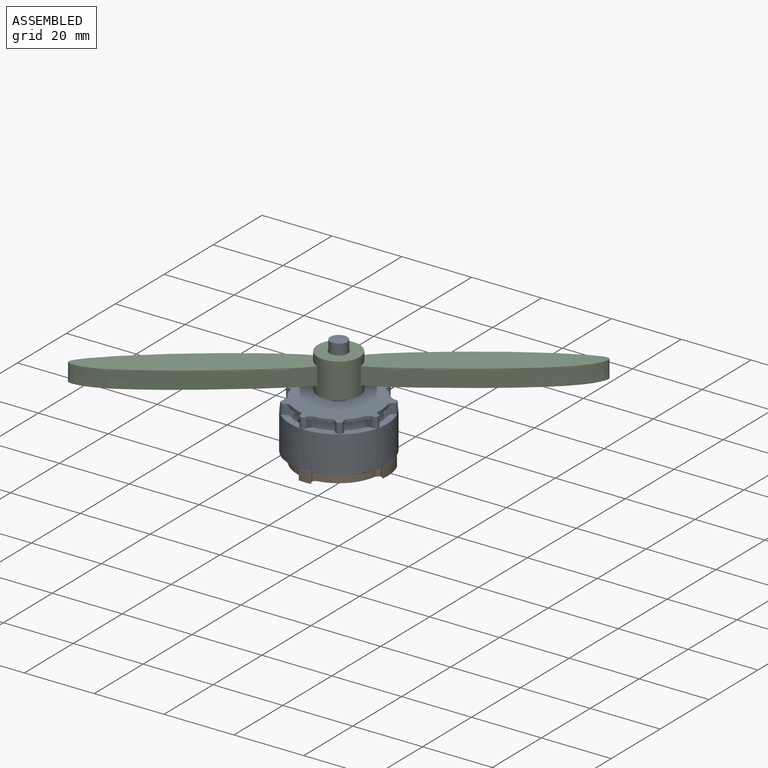
[diagram: assembled view]
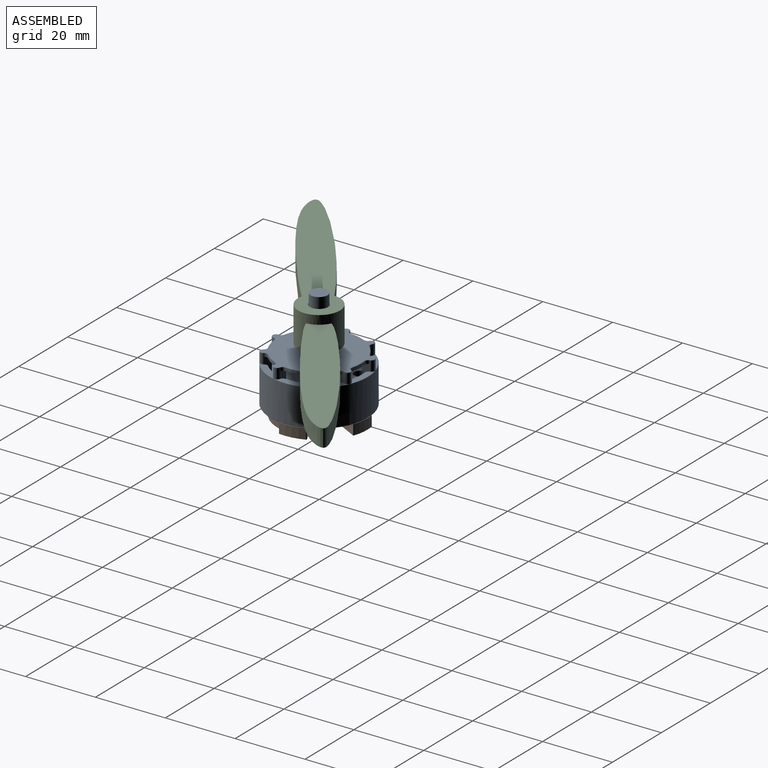
[diagram: assembled view, second angle]
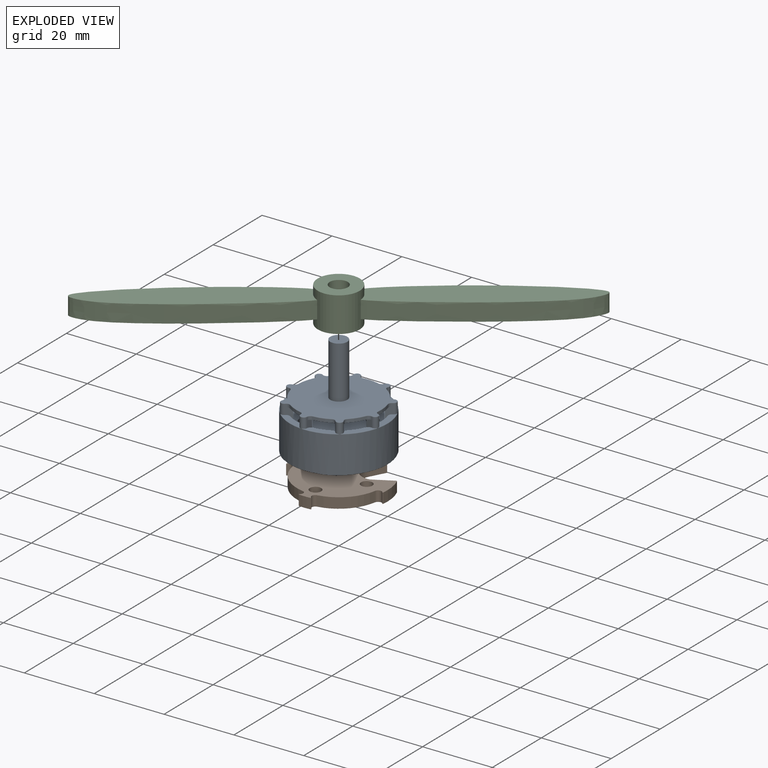
[diagram: exploded view]
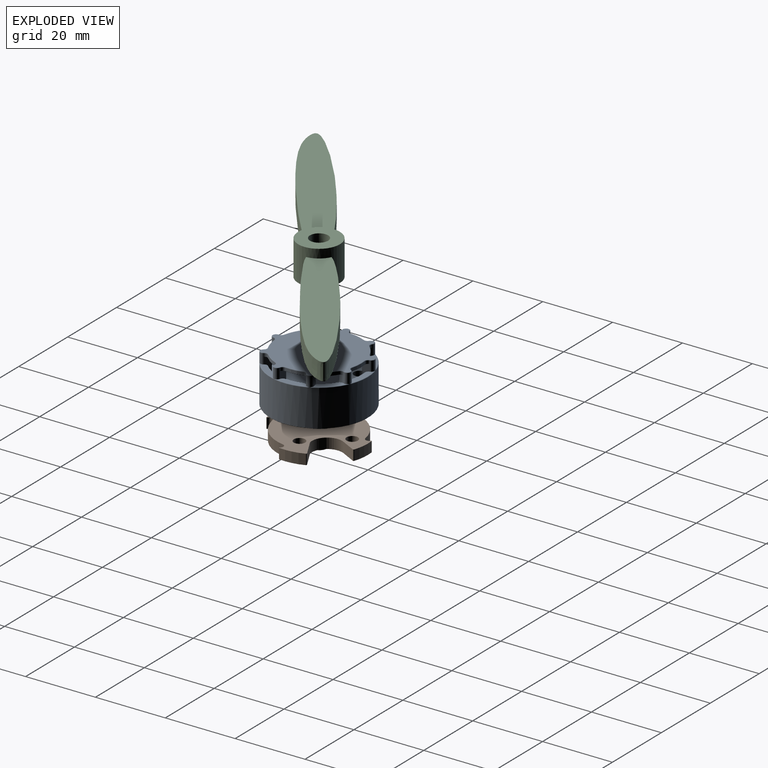
[diagram: exploded view, second angle]
ASSEMBLY  parts=3 mates=3
PART A: 203 faces, bbox 30.3x30.3x28.7 mm
  f0: plane 4.9x4.9mm, normal (0,0,1), area 18.9mm2, adj f1
  f1: cylinder r=2.45mm len=15mm, axis (0,0,-1), area 231mm2, adj f0,f112
  f2: cylinder r=0.12mm len=0.14mm, axis (0,0,1), area 0mm2, adj f76,f79,f194
  f3: cylinder r=0.12mm len=0.14mm, axis (0,0,1), area 0mm2, adj f76,f79,f194
  f4: cylinder r=0.12mm len=0.14mm, axis (0,0,1), area 0mm2, adj f75,f79,f194
  f5: plane 7.4x4.7mm, normal (0,0,1), area 12.3mm2, adj f6,f7,f8,f18,f46,f47,f48,f87
  f6: cylinder r=1mm len=2.88mm, axis (0,0,-1), area 9mm2, adj f5,f7,f15,f19,f86,f91,f156
  f7: plane 5.88x1.89mm, normal (0.17,0.98,0), area 9.5mm2, adj f5,f6,f28,f45,f46,f73,f74,f157
  f8: cylinder r=1mm len=2.88mm, axis (0,0,-1), area 9mm2, adj f5,f9,f18,f81,f85,f89,f162
  f9: plane 5.88x1.47mm, normal (0.77,0.64,0), area 9.5mm2, adj f8,f31,f49,f50,f73,f74,f81,f163
  f10: plane 6.55x5.64mm, normal (0,0,1), area 12.3mm2, adj f66,f67,f68,f111,f114,f115,f119,f120
  f11: plane 8.55x2mm, normal (0,0,1), area 12.3mm2, adj f13,f21,f70,f71,f72,f105,f113,f114
  f12: plane 6.55x5.64mm, normal (0,0,1), area 12.3mm2, adj f13,f14,f16,f20,f38,f39,f40,f99
  f13: cylinder r=1mm len=2.88mm, axis (0,0,-1), area 9mm2, adj f11,f12,f14,f21,f98,f103,f144
  f14: plane 5.88x1.8mm, normal (-0.94,0.34,0), area 9.5mm2, adj f12,f13,f22,f37,f38,f73,f74,f145
  f15: plane 8.42x2.64mm, normal (0,0,1), area 12.3mm2, adj f6,f16,f17,f19,f42,f43,f44,f93
  f16: cylinder r=1mm len=2.88mm, axis (0,0,-1), area 9mm2, adj f12,f15,f17,f20,f92,f97,f150
  f17: plane 5.88x1.66mm, normal (-0.5,0.87,0), area 9.5mm2, adj f15,f16,f25,f41,f42,f73,f74,f151
  f18: plane 5.88x1.47mm, normal (-0.77,-0.64,0), area 9.5mm2, adj f5,f8,f30,f48,f49,f73,f74,f161
  f19: plane 5.88x1.89mm, normal (-0.17,-0.98,0), area 9.5mm2, adj f6,f15,f27,f44,f45,f73,f74,f155
  f20: plane 5.88x1.66mm, normal (0.5,-0.87,0), area 9.5mm2, adj f12,f16,f24,f40,f41,f73,f74,f149
  f21: plane 5.88x1.8mm, normal (0.94,-0.34,0), area 9.5mm2, adj f11,f13,f36,f37,f72,f73,f74,f143
  f22: cylinder r=1mm len=1.22mm, axis (0,0,1), area 1.2mm2, adj f14,f23,f74,f146
  f23: cylinder r=12.12mm len=3.62mm, axis (0,0,-1), area 4.2mm2, adj f22,f24,f74,f147
  f24: cylinder r=1mm len=1.28mm, axis (0,0,-1), area 1.2mm2, adj f20,f23,f74,f148
  f25: cylinder r=1mm len=1.23mm, axis (0,0,1), area 1.2mm2, adj f17,f26,f74,f152
  f26: cylinder r=12.12mm len=4.65mm, axis (0,0,-1), area 4.2mm2, adj f25,f27,f74,f153
  f27: cylinder r=1mm len=1.01mm, axis (0,0,-1), area 1.2mm2, adj f19,f26,f74,f154
  f28: cylinder r=1mm len=1.12mm, axis (0,0,1), area 1.2mm2, adj f7,f29,f74,f158
  f29: cylinder r=12.12mm len=4.09mm, axis (0,0,-1), area 4.2mm2, adj f28,f30,f74,f159
  f30: cylinder r=1mm len=1.3mm, axis (0,0,-1), area 1.2mm2, adj f18,f29,f74,f160
  f31: cylinder r=1mm len=1.28mm, axis (0,0,1), area 1.2mm2, adj f9,f32,f74,f164
  f32: cylinder r=12.12mm len=4.44mm, axis (0,0,-1), area 4.2mm2, adj f31,f33,f74,f165
  f33: cylinder r=1mm len=0.99mm, axis (0,0,-1), area 1.2mm2, adj f32,f74,f139,f166
  f34: cylinder r=1mm len=1.13mm, axis (0,0,1), area 1.2mm2, adj f35,f74,f113,f140
  f35: cylinder r=12.12mm len=4.72mm, axis (0,0,-1), area 4.2mm2, adj f34,f36,f74,f141
  f36: cylinder r=1mm len=1.13mm, axis (0,0,-1), area 1.2mm2, adj f21,f35,f74,f142
  f37: cylinder r=11.12mm len=5mm, axis (0,0,-1), area 10mm2, adj f14,f21,f73,f74
  f38: cylinder r=1mm len=3mm, axis (0,0,-1), area 4.3mm2, adj f12,f14,f39,f73
  f39: cylinder r=12.12mm len=3.62mm, axis (0,0,-1), area 14.3mm2, adj f12,f38,f40,f73
  f40: cylinder r=1mm len=3mm, axis (0,0,-1), area 4.3mm2, adj f12,f20,f39,f73
  f41: cylinder r=11.12mm len=5mm, axis (0,0,-1), area 10mm2, adj f17,f20,f73,f74
  f42: cylinder r=1mm len=3mm, axis (0,0,-1), area 4.3mm2, adj f15,f17,f43,f73
  f43: cylinder r=12.12mm len=4.65mm, axis (0,0,-1), area 14.3mm2, adj f15,f42,f44,f73
  f44: cylinder r=1mm len=3mm, axis (0,0,-1), area 4.3mm2, adj f15,f19,f43,f73
  f45: cylinder r=11.12mm len=5mm, axis (0,0,-1), area 10mm2, adj f7,f19,f73,f74
  f46: cylinder r=1mm len=3mm, axis (0,0,-1), area 4.3mm2, adj f5,f7,f47,f73
  f47: cylinder r=12.12mm len=4.09mm, axis (0,0,-1), area 14.3mm2, adj f5,f46,f48,f73
  f48: cylinder r=1mm len=3mm, axis (0,0,-1), area 4.3mm2, adj f5,f18,f47,f73
  f49: cylinder r=11.12mm len=5mm, axis (0,0,-1), area 10mm2, adj f9,f18,f73,f74
  f50: cylinder r=1mm len=3mm, axis (0,0,-1), area 4.3mm2, adj f9,f51,f73,f81
  f51: cylinder r=12.12mm len=4.44mm, axis (0,0,-1), area 14.3mm2, adj f50,f52,f73,f81
  f52: cylinder r=1mm len=3mm, axis (0,0,-1), area 4.3mm2, adj f51,f73,f81,f139
  f53: cylinder r=11.12mm len=5mm, axis (0,0,-1), area 10mm2, adj f73,f74,f137,f139
  f54: cylinder r=1mm len=3mm, axis (0,0,-1), area 4.3mm2, adj f55,f73,f82,f137
  f55: cylinder r=12.12mm len=4.44mm, axis (0,0,-1), area 14.3mm2, adj f54,f56,f73,f82
  f56: cylinder r=1mm len=3mm, axis (0,0,-1), area 4.3mm2, adj f55,f73,f82,f133
  f57: cylinder r=11.12mm len=5mm, axis (0,0,-1), area 10mm2, adj f73,f74,f131,f133
  f58: cylinder r=1mm len=3mm, axis (0,0,-1), area 4.3mm2, adj f59,f73,f83,f131
  f59: cylinder r=12.12mm len=4.09mm, axis (0,0,-1), area 14.3mm2, adj f58,f60,f73,f83
  f60: cylinder r=1mm len=3mm, axis (0,0,-1), area 4.3mm2, adj f59,f73,f83,f127
  f61: cylinder r=11.12mm len=5mm, axis (0,0,-1), area 10mm2, adj f73,f74,f125,f127
  f62: cylinder r=1mm len=3mm, axis (0,0,-1), area 4.3mm2, adj f63,f73,f84,f125
  f63: cylinder r=12.12mm len=4.65mm, axis (0,0,-1), area 14.3mm2, adj f62,f64,f73,f84
  f64: cylinder r=1mm len=3mm, axis (0,0,-1), area 4.3mm2, adj f63,f73,f84,f121
  f65: cylinder r=11.12mm len=5mm, axis (0,0,-1), area 10mm2, adj f73,f74,f119,f121
  f66: cylinder r=1mm len=3mm, axis (0,0,-1), area 4.3mm2, adj f10,f67,f73,f119
  f67: cylinder r=12.12mm len=3.62mm, axis (0,0,-1), area 14.3mm2, adj f10,f66,f68,f73
  f68: cylinder r=1mm len=3mm, axis (0,0,-1), area 4.3mm2, adj f10,f67,f73,f115
  f69: cylinder r=11.12mm len=5mm, axis (0,0,-1), area 10mm2, adj f73,f74,f113,f115
  f70: cylinder r=1mm len=3mm, axis (0,0,-1), area 4.3mm2, adj f11,f71,f73,f113
  f71: cylinder r=12.12mm len=4.72mm, axis (0,0,-1), area 14.3mm2, adj f11,f70,f72,f73
  f72: cylinder r=1mm len=3mm, axis (0,0,-1), area 4.3mm2, adj f11,f21,f71,f73
  f73: plane 25.9x25.5mm, normal (0,0,1), area 413.5mm2, adj f7,f9,f14,f17,f18,f19,f20,f21
  f74: plane 25.9x25.5mm, normal (0,0,-1), area 446.7mm2, adj f7,f9,f14,f17,f18,f19,f20,f21
  f75: torus R=13.88mm, axis (0,0,1), area 3.6mm2, adj f4,f79,f194,f199
  f76: torus R=13.88mm, axis (0,0,1), area 3.6mm2, adj f2,f3,f79,f194
  f77: cylinder r=0.12mm len=0.14mm, axis (0,0,1), area 0mm2, adj f79,f80,f194
  f78: torus R=13.88mm, axis (0,0,1), area 2.3mm2, adj f79,f194,f200,f201
  f79: plane 28x28mm, normal (0,0,-1), area 574.2mm2, adj f2,f3,f4,f75,f76,f77,f78,f80
  f80: torus R=13.88mm, axis (0,0,1), area 3.6mm2, adj f77,f79,f194,f202
  f81: plane 8.03x3.64mm, normal (0,0,1), area 12.3mm2, adj f8,f9,f50,f51,f52,f90,f138,f139
  f82: plane 8.03x3.64mm, normal (0,0,1), area 12.3mm2, adj f54,f55,f56,f96,f132,f133,f137,f138
  f83: plane 7.4x4.7mm, normal (0,0,1), area 12.3mm2, adj f58,f59,f60,f102,f126,f127,f131,f132
  f84: plane 8.42x2.64mm, normal (0,0,1), area 12.3mm2, adj f62,f63,f64,f108,f120,f121,f125,f126
  f85: bspline ~0.42x0.38mm, area 0mm2, adj f8,f87,f194
  f86: bspline ~0.5x0.22mm, area 0mm2, adj f6,f87,f194
  f87: torus R=13.88mm, axis (0,0,-1), area 1.7mm2, adj f5,f85,f86,f194
  f88: bspline ~0.5x0.13mm, area 0mm2, adj f90,f138,f194
  f89: bspline ~0.47x0.32mm, area 0mm2, adj f8,f90,f194
  f90: torus R=13.88mm, axis (0,0,-1), area 1.7mm2, adj f81,f88,f89,f194
  f91: bspline ~0.52x0.13mm, area 0mm2, adj f6,f93,f194
  f92: bspline ~0.5x0.24mm, area 0mm2, adj f16,f93,f194
  f93: torus R=13.88mm, axis (0,0,-1), area 1.7mm2, adj f15,f91,f92,f194
  f94: bspline ~0.47x0.32mm, area 0mm2, adj f96,f132,f194
  f95: bspline ~0.5x0.13mm, area 0mm2, adj f96,f138,f194
  f96: torus R=13.88mm, axis (0,0,-1), area 1.7mm2, adj f82,f94,f95,f194
  f97: bspline ~0.43x0.37mm, area 0mm2, adj f16,f99,f194
  f98: bspline ~0.47x0.3mm, area 0mm2, adj f13,f99,f194
  f99: torus R=13.88mm, axis (0,0,-1), area 1.7mm2, adj f12,f97,f98,f194
  f100: bspline ~0.5x0.22mm, area 0mm2, adj f102,f126,f194
  f101: bspline ~0.42x0.38mm, area 0mm2, adj f102,f132,f194
  f102: torus R=13.88mm, axis (0,0,-1), area 1.7mm2, adj f83,f100,f101,f194
  f103: bspline ~0.52x0.16mm, area 0mm2, adj f13,f105,f194
  f104: bspline ~0.52x0.16mm, area 0mm2, adj f105,f114,f194
  f105: torus R=13.88mm, axis (0,0,-1), area 1.7mm2, adj f11,f103,f104,f194
  f106: bspline ~0.5x0.24mm, area 0mm2, adj f108,f120,f194
  f107: bspline ~0.52x0.13mm, area 0mm2, adj f108,f126,f194
  f108: torus R=13.88mm, axis (0,0,-1), area 1.7mm2, adj f84,f106,f107,f194
  f109: bspline ~0.47x0.3mm, area 0mm2, adj f111,f114,f194
  f110: bspline ~0.43x0.37mm, area 0mm2, adj f111,f120,f194
  f111: torus R=13.88mm, axis (0,0,-1), area 1.7mm2, adj f10,f109,f110,f194
  f112: plane 27.36x26.97mm, normal (0,0,1), area 463.9mm2, adj f1,f140,f141,f142,f143,f144,f145,f146
  f113: plane 5.88x1.8mm, normal (-0.94,-0.34,0), area 9.5mm2, adj f11,f34,f69,f70,f73,f74,f114,f193
  f114: cylinder r=1mm len=2.88mm, axis (0,0,-1), area 9mm2, adj f10,f11,f104,f109,f113,f115,f192
  f115: plane 5.88x1.8mm, normal (0.94,0.34,0), area 9.5mm2, adj f10,f68,f69,f73,f74,f114,f116,f191
  f116: cylinder r=1mm len=1.22mm, axis (0,0,-1), area 1.2mm2, adj f74,f115,f117,f190
  f117: cylinder r=12.12mm len=3.62mm, axis (0,0,-1), area 4.2mm2, adj f74,f116,f118,f189
  f118: cylinder r=1mm len=1.28mm, axis (0,0,1), area 1.2mm2, adj f74,f117,f119,f188
  f119: plane 5.88x1.66mm, normal (-0.5,-0.87,0), area 9.5mm2, adj f10,f65,f66,f73,f74,f118,f120,f187
  f120: cylinder r=1mm len=2.88mm, axis (0,0,-1), area 9mm2, adj f10,f84,f106,f110,f119,f121,f186
  f121: plane 5.88x1.66mm, normal (0.5,0.87,0), area 9.5mm2, adj f64,f65,f73,f74,f84,f120,f122,f185
  f122: cylinder r=1mm len=1.23mm, axis (0,0,-1), area 1.2mm2, adj f74,f121,f123,f184
  f123: cylinder r=12.12mm len=4.65mm, axis (0,0,-1), area 4.2mm2, adj f74,f122,f124,f183
  f124: cylinder r=1mm len=1.01mm, axis (0,0,1), area 1.2mm2, adj f74,f123,f125,f182
  f125: plane 5.88x1.89mm, normal (0.17,-0.98,0), area 9.5mm2, adj f61,f62,f73,f74,f84,f124,f126,f181
  f126: cylinder r=1mm len=2.88mm, axis (0,0,-1), area 9mm2, adj f83,f84,f100,f107,f125,f127,f180
  f127: plane 5.88x1.89mm, normal (-0.17,0.98,0), area 9.5mm2, adj f60,f61,f73,f74,f83,f126,f128,f179
  f128: cylinder r=1mm len=1.12mm, axis (0,0,-1), area 1.2mm2, adj f74,f127,f129,f178
  f129: cylinder r=12.12mm len=4.09mm, axis (0,0,-1), area 4.2mm2, adj f74,f128,f130,f177
  f130: cylinder r=1mm len=1.3mm, axis (0,0,1), area 1.2mm2, adj f74,f129,f131,f176
  f131: plane 5.88x1.47mm, normal (0.77,-0.64,0), area 9.5mm2, adj f57,f58,f73,f74,f83,f130,f132,f175
  f132: cylinder r=1mm len=2.88mm, axis (0,0,-1), area 9mm2, adj f82,f83,f94,f101,f131,f133,f174
  f133: plane 5.88x1.47mm, normal (-0.77,0.64,0), area 9.5mm2, adj f56,f57,f73,f74,f82,f132,f134,f173
  f134: cylinder r=1mm len=1.28mm, axis (0,0,-1), area 1.2mm2, adj f74,f133,f135,f172
  f135: cylinder r=12.12mm len=4.44mm, axis (0,0,-1), area 4.2mm2, adj f74,f134,f136,f171
  f136: cylinder r=1mm len=0.99mm, axis (0,0,1), area 1.2mm2, adj f74,f135,f137,f170
  f137: plane 5.88x1.92mm, normal (1,0,0), area 9.5mm2, adj f53,f54,f73,f74,f82,f136,f138,f169
  f138: cylinder r=1mm len=2.88mm, axis (0,0,-1), area 9mm2, adj f81,f82,f88,f95,f137,f139,f168
  f139: plane 5.88x1.92mm, normal (-1,0,0), area 9.5mm2, adj f33,f52,f53,f73,f74,f81,f138,f167
  f140: torus R=1.12mm, axis (0,0,-1), area 0.3mm2, adj f34,f112,f141,f193
  f141: torus R=12mm, axis (0,0,1), area 0.9mm2, adj f35,f112,f140,f142
  f142: torus R=1.12mm, axis (0,0,-1), area 0.3mm2, adj f36,f112,f141,f143
  f143: cylinder r=0.12mm len=0.13mm, axis (0.34,0.94,0), area 0mm2, adj f21,f112,f142,f144
  f144: torus R=0.88mm, axis (0,0,1), area 0.6mm2, adj f13,f112,f143,f145
  f145: cylinder r=0.12mm len=0.13mm, axis (-0.34,-0.94,0), area 0mm2, adj f14,f112,f144,f146
  f146: torus R=1.12mm, axis (0,0,-1), area 0.3mm2, adj f22,f112,f145,f147
  f147: torus R=12mm, axis (0,0,1), area 0.9mm2, adj f23,f112,f146,f148
  f148: torus R=1.12mm, axis (0,0,-1), area 0.3mm2, adj f24,f112,f147,f149
  f149: cylinder r=0.12mm len=0.13mm, axis (0.87,0.5,0), area 0mm2, adj f20,f112,f148,f150
  f150: torus R=0.88mm, axis (0,0,1), area 0.6mm2, adj f16,f112,f149,f151
  f151: cylinder r=0.12mm len=0.13mm, axis (-0.87,-0.5,0), area 0mm2, adj f17,f112,f150,f152
  f152: torus R=1.12mm, axis (0,0,-1), area 0.3mm2, adj f25,f112,f151,f153
  f153: torus R=12mm, axis (0,0,1), area 0.9mm2, adj f26,f112,f152,f154
  f154: torus R=1.12mm, axis (0,0,-1), area 0.3mm2, adj f27,f112,f153,f155
  f155: cylinder r=0.12mm len=0.13mm, axis (0.98,-0.17,0), area 0mm2, adj f19,f112,f154,f156
  f156: torus R=0.88mm, axis (0,0,1), area 0.6mm2, adj f6,f112,f155,f157
  f157: cylinder r=0.12mm len=0.13mm, axis (-0.98,0.17,0), area 0mm2, adj f7,f112,f156,f158
  f158: torus R=1.12mm, axis (0,0,-1), area 0.3mm2, adj f28,f112,f157,f159
  f159: torus R=12mm, axis (0,0,1), area 0.9mm2, adj f29,f112,f158,f160
  f160: torus R=1.12mm, axis (0,0,-1), area 0.3mm2, adj f30,f112,f159,f161
  f161: cylinder r=0.12mm len=0.13mm, axis (0.64,-0.77,0), area 0mm2, adj f18,f112,f160,f162
  f162: torus R=0.88mm, axis (0,0,1), area 0.6mm2, adj f8,f112,f161,f163
  f163: cylinder r=0.12mm len=0.13mm, axis (-0.64,0.77,0), area 0mm2, adj f9,f112,f162,f164
  f164: torus R=1.12mm, axis (0,0,-1), area 0.3mm2, adj f31,f112,f163,f165
  f165: torus R=12mm, axis (0,0,1), area 0.9mm2, adj f32,f112,f164,f166
  f166: torus R=1.12mm, axis (0,0,-1), area 0.3mm2, adj f33,f112,f165,f167
  f167: cylinder r=0.12mm len=0.13mm, axis (0,-1,0), area 0mm2, adj f112,f139,f166,f168
  f168: torus R=0.88mm, axis (0,0,1), area 0.6mm2, adj f112,f138,f167,f169
  f169: cylinder r=0.12mm len=0.13mm, axis (0,1,0), area 0mm2, adj f112,f137,f168,f170
  f170: torus R=1.12mm, axis (0,0,-1), area 0.3mm2, adj f112,f136,f169,f171
  f171: torus R=12mm, axis (0,0,1), area 0.9mm2, adj f112,f135,f170,f172
  f172: torus R=1.12mm, axis (0,0,-1), area 0.3mm2, adj f112,f134,f171,f173
  f173: cylinder r=0.12mm len=0.13mm, axis (-0.64,-0.77,0), area 0mm2, adj f112,f133,f172,f174
  f174: torus R=0.88mm, axis (0,0,1), area 0.6mm2, adj f112,f132,f173,f175
  f175: cylinder r=0.12mm len=0.13mm, axis (0.64,0.77,0), area 0mm2, adj f112,f131,f174,f176
  f176: torus R=1.12mm, axis (0,0,-1), area 0.3mm2, adj f112,f130,f175,f177
  f177: torus R=12mm, axis (0,0,1), area 0.9mm2, adj f112,f129,f176,f178
  f178: torus R=1.12mm, axis (0,0,-1), area 0.3mm2, adj f112,f128,f177,f179
  f179: cylinder r=0.12mm len=0.13mm, axis (-0.98,-0.17,0), area 0mm2, adj f112,f127,f178,f180
  f180: torus R=0.88mm, axis (0,0,1), area 0.6mm2, adj f112,f126,f179,f181
  f181: cylinder r=0.12mm len=0.13mm, axis (0.98,0.17,0), area 0mm2, adj f112,f125,f180,f182
  f182: torus R=1.12mm, axis (0,0,-1), area 0.3mm2, adj f112,f124,f181,f183
  f183: torus R=12mm, axis (0,0,1), area 0.9mm2, adj f112,f123,f182,f184
  f184: torus R=1.12mm, axis (0,0,-1), area 0.3mm2, adj f112,f122,f183,f185
  f185: cylinder r=0.12mm len=0.13mm, axis (-0.87,0.5,0), area 0mm2, adj f112,f121,f184,f186
  f186: torus R=0.88mm, axis (0,0,1), area 0.6mm2, adj f112,f120,f185,f187
  f187: cylinder r=0.12mm len=0.13mm, axis (0.87,-0.5,0), area 0mm2, adj f112,f119,f186,f188
  f188: torus R=1.12mm, axis (0,0,-1), area 0.3mm2, adj f112,f118,f187,f189
  f189: torus R=12mm, axis (0,0,1), area 0.9mm2, adj f112,f117,f188,f190
  f190: torus R=1.12mm, axis (0,0,-1), area 0.3mm2, adj f112,f116,f189,f191
  f191: cylinder r=0.12mm len=0.13mm, axis (-0.34,0.94,0), area 0mm2, adj f112,f115,f190,f192
  f192: torus R=0.88mm, axis (0,0,1), area 0.6mm2, adj f112,f114,f191,f193
  f193: cylinder r=0.12mm len=0.13mm, axis (0.34,-0.94,0), area 0mm2, adj f112,f113,f140,f192
  f194: cylinder r=14mm len=28mm, axis (0,0,1), area 922.3mm2, adj f2,f3,f4,f75,f76,f77,f78,f79
  f195: cylinder r=1.62mm len=7.7mm, axis (0,0,1), area 78.6mm2, adj f73,f79
  f196: cylinder r=1.62mm len=7.7mm, axis (0,0,1), area 78.6mm2, adj f73,f79
  f197: cylinder r=1.62mm len=7.7mm, axis (0,0,1), area 78.6mm2, adj f73,f79
  f198: cylinder r=1.62mm len=7.7mm, axis (0,0,1), area 78.6mm2, adj f73,f79
  f199: cylinder r=0.12mm len=0.14mm, axis (0,0,1), area 0mm2, adj f75,f79,f194
  f200: cylinder r=0.25mm len=0.19mm, axis (0,0,-1), area 0mm2, adj f78,f79,f194
  f201: cylinder r=0.25mm len=0.2mm, axis (0,0,1), area 0mm2, adj f78,f79,f194
  f202: cylinder r=0.12mm len=0.14mm, axis (0,0,1), area 0mm2, adj f79,f80,f194
PART B: 56 faces, bbox 29.3x29.3x4.3 mm
  f0: plane 28x28mm, normal (0,0,1), area 403.1mm2, adj f1,f2,f3,f4,f5,f6,f7,f32
  f1: cylinder r=0.12mm len=2.88mm, axis (0,0,1), area 0.9mm2, adj f0,f6,f27,f32
  f2: cylinder r=0.12mm len=2.88mm, axis (0,0,1), area 0.9mm2, adj f0,f6,f28,f48
  f3: cylinder r=0.12mm len=2.88mm, axis (0,0,1), area 0.9mm2, adj f0,f5,f29,f49
  f4: cylinder r=0.12mm len=2.88mm, axis (0,0,1), area 0.9mm2, adj f0,f5,f30,f53
  f5: cylinder r=14mm len=3.33mm, axis (0,0,1), area 9.6mm2, adj f0,f3,f4,f11
  f6: cylinder r=14mm len=3.33mm, axis (0,0,1), area 9.6mm2, adj f0,f1,f2,f15
  f7: cylinder r=14mm len=6.96mm, axis (0,0,1), area 20.4mm2, adj f0,f21,f35,f36
  f8: torus R=1.12mm, axis (0,0,1), area 0.5mm2, adj f9,f30,f41,f53
  f9: torus R=11.88mm, axis (0,0,-1), area 2.9mm2, adj f8,f10,f41,f52
  f10: torus R=1.12mm, axis (0,0,1), area 0.5mm2, adj f9,f31,f41,f51
  f11: torus R=13.88mm, axis (0,0,1), area 0.7mm2, adj f5,f29,f30,f41
  f12: torus R=1.12mm, axis (0,0,1), area 0.5mm2, adj f13,f28,f41,f48
  f13: torus R=11.88mm, axis (0,0,-1), area 2.9mm2, adj f12,f14,f41,f50
  f14: torus R=1.12mm, axis (0,0,1), area 0.5mm2, adj f13,f29,f41,f49
  f15: torus R=13.88mm, axis (0,0,1), area 0.7mm2, adj f6,f27,f28,f41
  f16: torus R=1.12mm, axis (0,0,1), area 0.5mm2, adj f17,f26,f34,f41
  f17: torus R=11.88mm, axis (0,0,-1), area 2.9mm2, adj f16,f18,f33,f41
  f18: torus R=1.12mm, axis (0,0,1), area 0.5mm2, adj f17,f27,f32,f41
  f19: cylinder r=0.12mm len=5.49mm, axis (0.88,0.48,0), area 1.2mm2, adj f20,f25,f37,f41
  f20: torus R=0.12mm, axis (0,0,1), area 0.1mm2, adj f19,f21,f36,f41
  f21: torus R=13.88mm, axis (0,0,1), area 1.4mm2, adj f7,f20,f26,f41
  f22: torus R=13.88mm, axis (0,0,1), area 1.2mm2, adj f23,f31,f41,f46
  f23: torus R=0.12mm, axis (0,0,1), area 0.1mm2, adj f22,f24,f40,f41
  f24: cylinder r=0.12mm len=4.2mm, axis (-0.47,-0.88,0), area 0.9mm2, adj f23,f25,f39,f41
  f25: torus R=4.47mm, axis (0,0,1), area 1.9mm2, adj f19,f24,f38,f41
  f26: sphere r=0.12mm, area 0mm2, adj f16,f21,f35
  f27: sphere r=0.12mm, area 0mm2, adj f1,f15,f18
  f28: sphere r=0.12mm, area 0mm2, adj f2,f12,f15
  f29: sphere r=0.12mm, area 0mm2, adj f3,f11,f14
  f30: sphere r=0.12mm, area 0mm2, adj f4,f8,f11
  f31: sphere r=0.12mm, area 0mm2, adj f10,f22,f47
  f32: cylinder r=1mm len=2.88mm, axis (0,0,1), area 7mm2, adj f0,f1,f18,f33
  f33: cylinder r=12mm len=9.77mm, axis (0,0,1), area 42.3mm2, adj f0,f17,f32,f34
  f34: cylinder r=1mm len=2.88mm, axis (0,0,1), area 7mm2, adj f0,f16,f33,f35
  f35: cylinder r=0.12mm len=2.88mm, axis (0,0,1), area 0.9mm2, adj f0,f7,f26,f34
  f36: cylinder r=0.25mm len=2.88mm, axis (0,0,1), area 1.2mm2, adj f0,f7,f20,f37
  f37: plane 5.42x2.95mm, normal (-0.48,0.88,0), area 17.7mm2, adj f0,f19,f36,f38
  f38: cylinder r=4.35mm len=6.37mm, axis (0,0,1), area 28.2mm2, adj f0,f25,f37,f39
  f39: plane 4.14x2.88mm, normal (0.88,-0.47,0), area 13.4mm2, adj f0,f24,f38,f40
  f40: cylinder r=0.25mm len=2.88mm, axis (0,0,-1), area 1.2mm2, adj f0,f23,f39,f46
  f41: plane 27.75x27.75mm, normal (0,0,-1), area 370.8mm2, adj f8,f9,f10,f11,f12,f13,f14,f15
  f42: cylinder r=1.62mm len=3.25mm, axis (0,0,1), area 30.6mm2, adj f0,f41
  f43: cylinder r=1.62mm len=3.25mm, axis (0,0,1), area 30.6mm2, adj f0,f41
  f44: cylinder r=1.62mm len=3.25mm, axis (0,0,1), area 30.6mm2, adj f0,f41
  f45: cylinder r=1.62mm len=3.25mm, axis (0,0,1), area 30.6mm2, adj f0,f41
  f46: cylinder r=14mm len=6.19mm, axis (0,0,1), area 18mm2, adj f0,f22,f40,f47
  f47: cylinder r=0.12mm len=2.88mm, axis (0,0,1), area 0.9mm2, adj f0,f31,f46,f51
  f48: cylinder r=1mm len=2.88mm, axis (0,0,1), area 7mm2, adj f0,f2,f12,f50
  f49: cylinder r=1mm len=2.88mm, axis (0,0,1), area 7mm2, adj f0,f3,f14,f50
  f50: cylinder r=12mm len=9.77mm, axis (0,0,1), area 42.3mm2, adj f0,f13,f48,f49
  f51: cylinder r=1mm len=2.88mm, axis (0,0,1), area 7mm2, adj f0,f10,f47,f52
  f52: cylinder r=12mm len=9.77mm, axis (0,0,1), area 42.3mm2, adj f0,f9,f51,f53
  f53: cylinder r=1mm len=2.88mm, axis (0,0,1), area 7mm2, adj f0,f4,f8,f52
  f54: cylinder r=2.5mm len=5mm, axis (0,0,-1), area 20.4mm2, adj f41,f55
  f55: plane 5x5mm, normal (0,0,-1), area 19.6mm2, adj f54
PART C: 12 faces, bbox 127.2x12x10 mm
  f0: cylinder r=6mm len=12mm, axis (0,0,-1), area 314.1mm2, adj f2,f3,f4,f5,f6,f7,f8,f9
  f1: cylinder r=2.6mm len=10mm, axis (0,0,-1), area 163.4mm2, adj f2,f3
  f2: plane 12x12mm, normal (0,0,1), area 91.9mm2, adj f0,f1
  f3: plane 12x12mm, normal (0,0,-1), area 91.9mm2, adj f0,f1
  f4: extruded ~58.38x5.01mm, area 298.2mm2, adj f0,f5,f6,f7
  f5: extruded ~58.24x5mm, area 296.3mm2, adj f0,f4,f6,f7
  f6: plane 58.82x9.76mm, normal (0,0,-1), area 465.4mm2, adj f0,f4,f5
  f7: plane 58.82x9.76mm, normal (0,0,1), area 465.4mm2, adj f0,f4,f5
  f8: extruded ~58.38x5.01mm, area 298.2mm2, adj f0,f9,f10,f11
  f9: extruded ~58.24x5mm, area 296.3mm2, adj f0,f8,f10,f11
  f10: plane 58.82x9.76mm, normal (0,0,-1), area 465.4mm2, adj f0,f8,f9
  f11: plane 58.82x9.76mm, normal (0,0,1), area 465.4mm2, adj f0,f8,f9
PLACE A rot(axis=(0,0,-1),144.2deg) t=(0,0,0)mm
PLACE B at identity
PLACE C rot(axis=(0,0,-1),144.2deg) t=(0,0,16.7)mm
MATE revolute A.f1 <-> B.f5  axis (0,0,-1) through (0,0,3)mm
MATE planar A.f1 <-> C.f0  axis (0,0,1) through (0,0,16.7)mm
MATE slider C.f0 <-> A.f1  axis (0,0,1) through (0,0,28.7)mm
